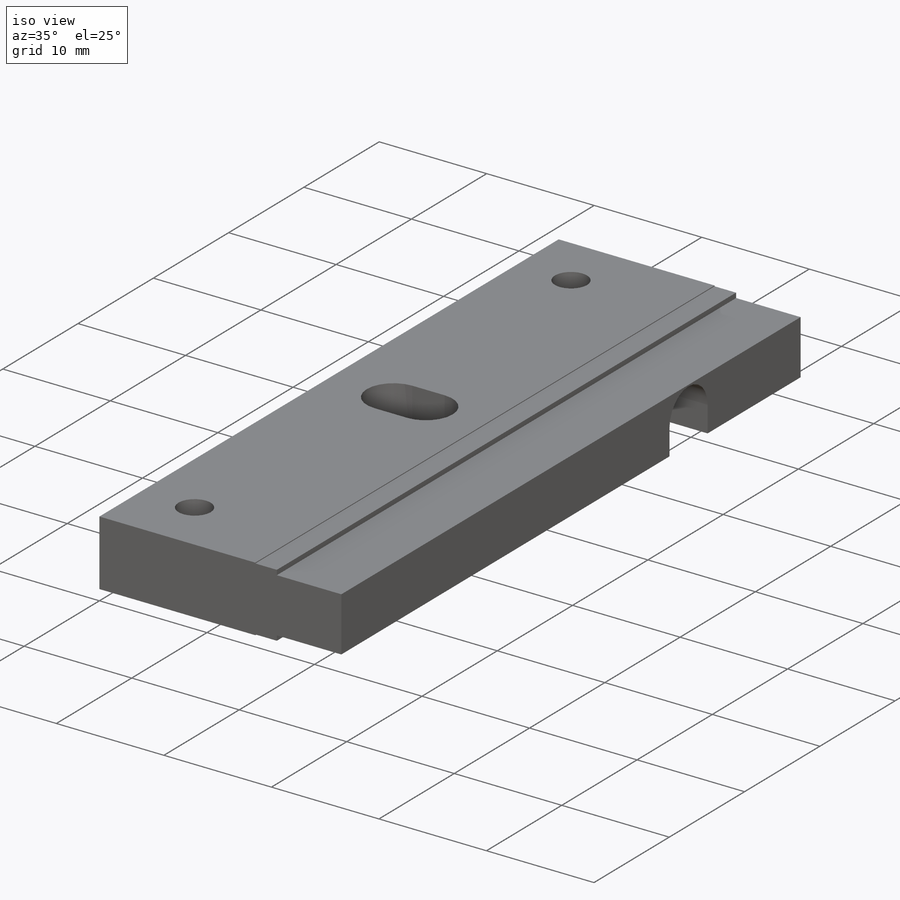
[diagram: iso view]
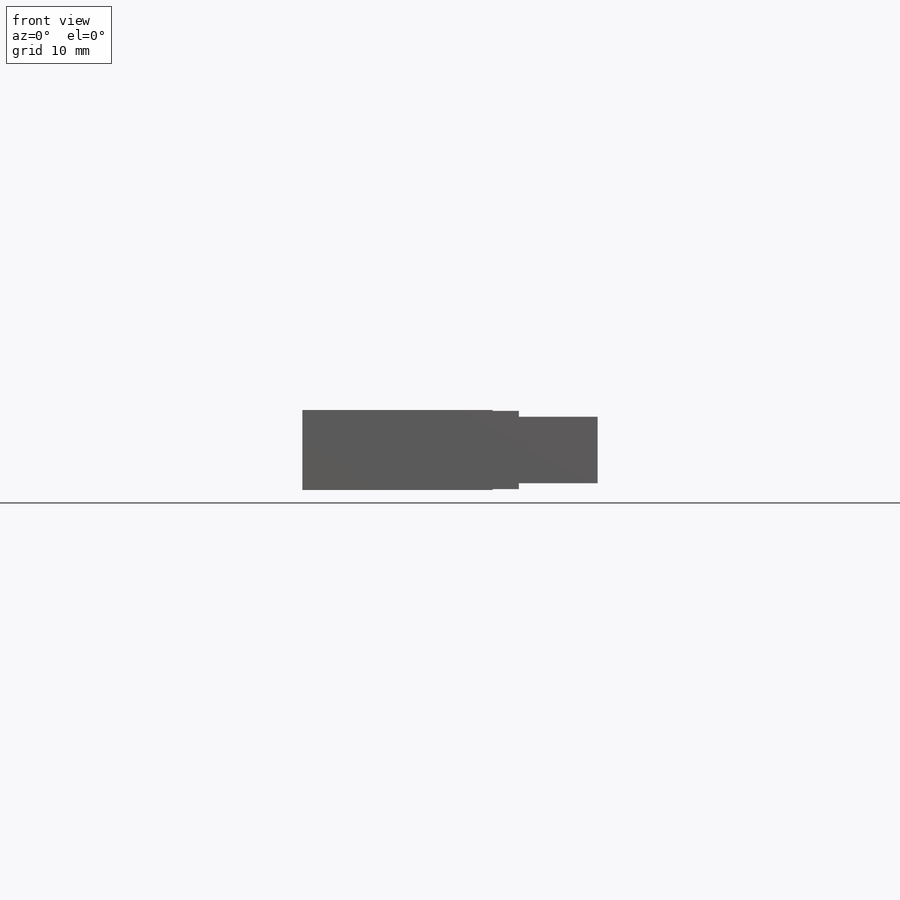
[diagram: front view]
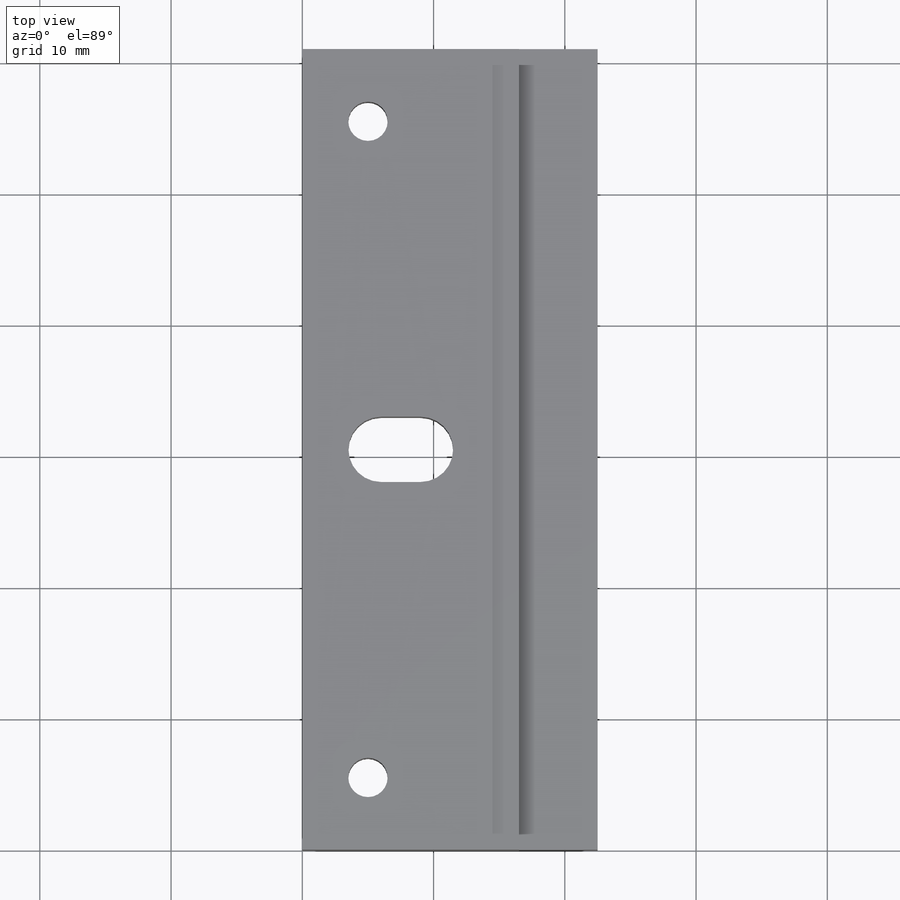
[diagram: top view]
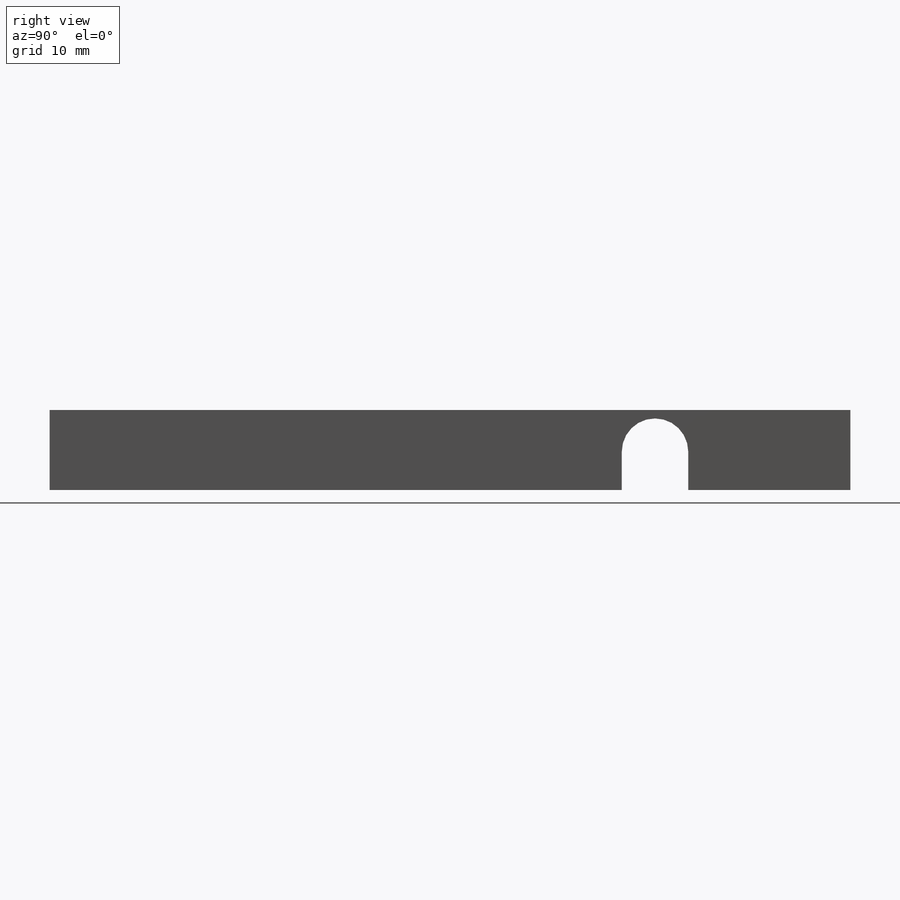
[diagram: right view]
SOLIDWORKS PART (.sldprt)
format: sldprt  version: not decoded by parser v0  size: 275,968 bytes
history: native  units: mm
features: sketch x6, cut_extrude x5, material x1, extrude x1 (+11 scaffold rows collapsed)
feature tree (24):
  scaffold x11  (default folders/planes/origin — collapsed)
  material  "Generic Carbon Fiber"
  sketch  "Sketch1"  dims[D1=61.0mm D2=6.1mm]
  extrude  "Boss-Extrude1"  Depth=22.5mm
  sketch  "Sketch2"  dims[D1=5.1952mm D2=0.3mm]
  cut_extrude  "Cut-Extrude1"  Depth=6mm
  sketch  "Sketch5"  dims[c1.D1=5.0648mm c1.D2=14.881mm c1.D3=2.68mm c2.D2=14.881mm c2.D3=2.7254mm]
  cut_extrude  "Cut-Extrude3"  [1 undecoded]
  sketch  "Sketch6"  dims[D2=2.4892mm D1=3.0mm D3=6.0mm]
  cut_extrude  "Cut-Extrude4"  [1 undecoded]
  sketch  "Sketch7"  dims[D1=3.0mm D2=5.0mm D3=25.0mm D4=25.0mm]
  cut_extrude  "Cut-Extrude5"  [1 undecoded]
  sketch  "Sketch8"  dims[D1=~0.06858mm D2=~0.06858mm D3=~0.06858mm D4=~0.06858mm D5=2.0mm D6=5.0mm]
  cut_extrude  "Cut-Extrude6"  [1 undecoded]
decode coverage: 8 of 12 modeling features carry decoded parameters
note: ~ marks probable driven/reference dimensions
note: 4 parameter values undecoded
summary: no parameter record found for 4 features
note: suppression state not decoded; provenance and decode notes live in map.json
